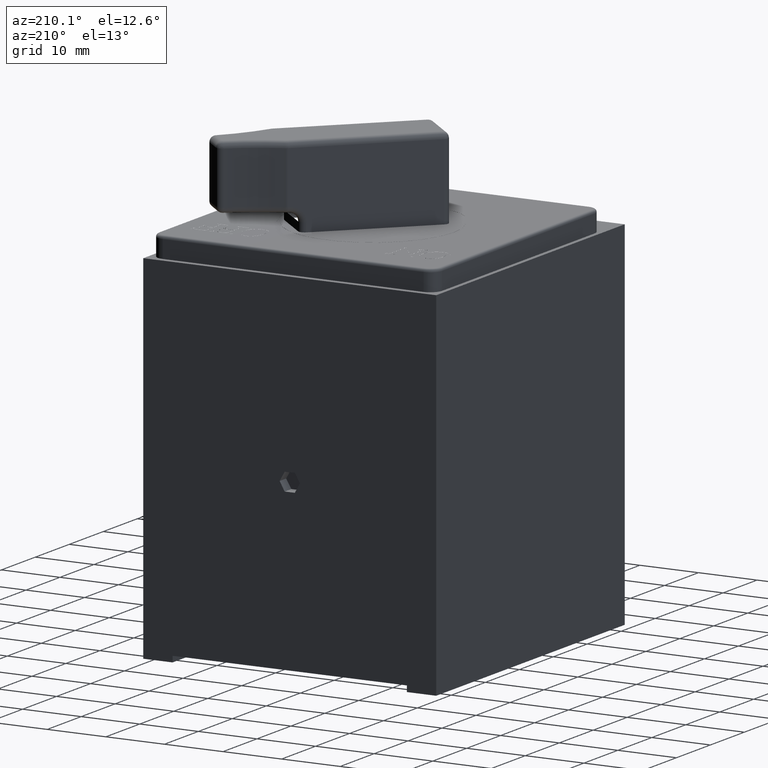
[diagram: clean part render]
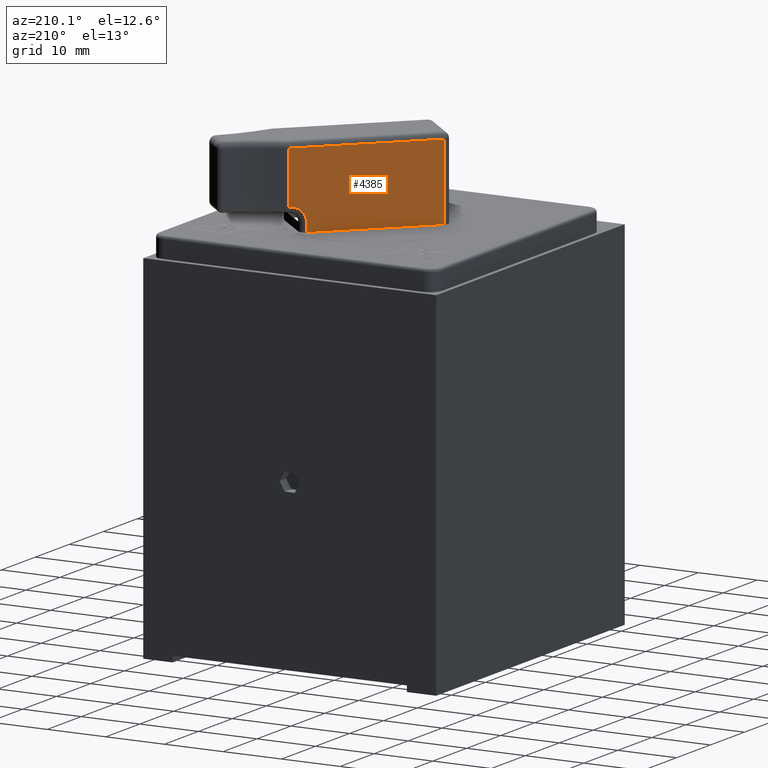
[diagram: same view with one face highlighted and labeled with its STEP entity id]
A machine part, auxiliary view. The second image highlights one B-rep face of the part: STEP entity #4385.
In plain terms, the highlighted planar face has unit normal (0.7071, -0.7071, 0).
Its self-contained STEP definition (entity closure, byte-faithful):
#11 = ORIENTED_EDGE ( 'NONE', *, *, #4116, .T. ) ;
#18 = CARTESIAN_POINT ( 'NONE',  ( 0.2417599465482757600, 16.27742948421141400, 124.6999999999761900 ) ) ;
#119 = ORIENTED_EDGE ( 'NONE', *, *, #2295, .T. ) ;
#382 = CARTESIAN_POINT ( 'NONE',  ( -16.72880280192891800, -0.6931332642657814800, 111.7999999999761900 ) ) ;
#586 = VECTOR ( 'NONE', #3342, 1000.000000000000000 ) ;
#846 = LINE ( 'NONE', #1646, #1943 ) ;
#892 = EDGE_CURVE ( 'NONE', #1522, #2058, #5946, .T. ) ;
#1088 = CARTESIAN_POINT ( 'NONE',  ( -0.1117934440451589400, 15.92387609361798100, 115.7999999999761900 ) ) ;
#1138 = FACE_OUTER_BOUND ( 'NONE', #2884, .T. ) ;
#1301 = EDGE_CURVE ( 'NONE', #2058, #5671, #4411, .T. ) ;
#1365 = AXIS2_PLACEMENT_3D ( 'NONE', #3150, #3597, #5120 ) ;
#1442 = CARTESIAN_POINT ( 'NONE',  ( -1.879560397011524900, 14.15610914065161900, 111.7999999999761900 ) ) ;
#1522 = VERTEX_POINT ( 'NONE', #1088 ) ;
#1646 = CARTESIAN_POINT ( 'NONE',  ( -16.72880280192891800, -0.6931332642657814800, 125.6999999999761900 ) ) ;
#1785 = VERTEX_POINT ( 'NONE', #3149 ) ;
#1819 = VECTOR ( 'NONE', #4791, 1000.000000000000000 ) ;
#1911 = CARTESIAN_POINT ( 'NONE',  ( 0.09617666667844498900, 16.13184620434158800, 125.6999999999761900 ) ) ;
#1943 = VECTOR ( 'NONE', #4853, 1000.000000000000000 ) ;
#2003 = CARTESIAN_POINT ( 'NONE',  ( -17.43590958311546400, -1.400240045452329800, 111.7999999999761900 ) ) ;
#2016 = VECTOR ( 'NONE', #3429, 1000.000000000000000 ) ;
#2028 = LINE ( 'NONE', #1911, #1819 ) ;
#2058 = VERTEX_POINT ( 'NONE', #2622 ) ;
#2295 = EDGE_CURVE ( 'NONE', #5653, #1522, #2554, .T. ) ;
#2314 = AXIS2_PLACEMENT_3D ( 'NONE', #5688, #4216, #4671 ) ;
#2523 = ORIENTED_EDGE ( 'NONE', *, *, #892, .T. ) ;
#2550 = ORIENTED_EDGE ( 'NONE', *, *, #2659, .T. ) ;
#2554 = LINE ( 'NONE', #5309, #4610 ) ;
#2622 = CARTESIAN_POINT ( 'NONE',  ( -1.879560397011525800, 14.15610914065161200, 113.2999999999761900 ) ) ;
#2659 = EDGE_CURVE ( 'NONE', #1785, #5653, #2028, .T. ) ;
#2884 = EDGE_LOOP ( 'NONE', ( #2523, #4452, #11, #3327, #3998, #2550, #119 ) ) ;
#2927 = VERTEX_POINT ( 'NONE', #382 ) ;
#2963 = VECTOR ( 'NONE', #3652, 1000.000000000000000 ) ;
#2972 = LINE ( 'NONE', #2003, #2016 ) ;
#3014 = VERTEX_POINT ( 'NONE', #3295 ) ;
#3037 = LINE ( 'NONE', #18, #2963 ) ;
#3149 = CARTESIAN_POINT ( 'NONE',  ( 0.09617666667844238000, 16.13184620434158100, 124.6999999999761900 ) ) ;
#3150 = CARTESIAN_POINT ( 'NONE',  ( -17.43590958311546400, -1.400240045452329800, 125.6999999999761900 ) ) ;
#3226 = PLANE ( 'NONE',  #1365 ) ;
#3295 = CARTESIAN_POINT ( 'NONE',  ( -16.72880280192891800, -0.6931332642657814800, 124.6999999999761900 ) ) ;
#3327 = ORIENTED_EDGE ( 'NONE', *, *, #3392, .T. ) ;
#3342 = DIRECTION ( 'NONE',  ( -0.0000000000000000000, -0.0000000000000000000, -1.000000000000000000 ) ) ;
#3392 = EDGE_CURVE ( 'NONE', #2927, #3014, #846, .T. ) ;
#3429 = DIRECTION ( 'NONE',  ( -0.7071067811865474600, -0.7071067811865476800, -0.0000000000000000000 ) ) ;
#3597 = DIRECTION ( 'NONE',  ( 0.7071067811865476800, -0.7071067811865474600, 0.0000000000000000000 ) ) ;
#3652 = DIRECTION ( 'NONE',  ( 0.7071067811865474600, 0.7071067811865476800, -0.0000000000000000000 ) ) ;
#3750 = CARTESIAN_POINT ( 'NONE',  ( -1.879560397011524900, 14.15610914065161900, 125.6999999999761900 ) ) ;
#3938 = DIRECTION ( 'NONE',  ( -0.7071067811865474600, -0.7071067811865476800, -0.0000000000000000000 ) ) ;
#3998 = ORIENTED_EDGE ( 'NONE', *, *, #5972, .T. ) ;
#4116 = EDGE_CURVE ( 'NONE', #5671, #2927, #2972, .T. ) ;
#4216 = DIRECTION ( 'NONE',  ( 0.7071067811865476800, -0.7071067811865474600, 0.0000000000000000000 ) ) ;
#4385 = ADVANCED_FACE ( 'NONE', ( #1138 ), #3226, .F. ) ;
#4411 = LINE ( 'NONE', #3750, #586 ) ;
#4452 = ORIENTED_EDGE ( 'NONE', *, *, #1301, .T. ) ;
#4557 = CARTESIAN_POINT ( 'NONE',  ( 0.09617666667844498900, 16.13184620434158800, 115.7999999999761900 ) ) ;
#4610 = VECTOR ( 'NONE', #3938, 1000.000000000000000 ) ;
#4671 = DIRECTION ( 'NONE',  ( 0.7071067811865471300, 0.7071067811865479100, 0.0000000000000000000 ) ) ;
#4791 = DIRECTION ( 'NONE',  ( 0.0000000000000000000, 0.0000000000000000000, -1.000000000000000000 ) ) ;
#4853 = DIRECTION ( 'NONE',  ( -0.0000000000000000000, -0.0000000000000000000, 1.000000000000000000 ) ) ;
#5120 = DIRECTION ( 'NONE',  ( 0.7071067811865474600, 0.7071067811865476800, 0.0000000000000000000 ) ) ;
#5309 = CARTESIAN_POINT ( 'NONE',  ( -17.43590958311546400, -1.400240045452329800, 115.7999999999761900 ) ) ;
#5653 = VERTEX_POINT ( 'NONE', #4557 ) ;
#5671 = VERTEX_POINT ( 'NONE', #1442 ) ;
#5688 = CARTESIAN_POINT ( 'NONE',  ( -0.1117934440451589400, 15.92387609361798100, 113.2999999999761900 ) ) ;
#5946 = CIRCLE ( 'NONE', #2314, 2.500000000000004400 ) ;
#5972 = EDGE_CURVE ( 'NONE', #3014, #1785, #3037, .T. ) ;